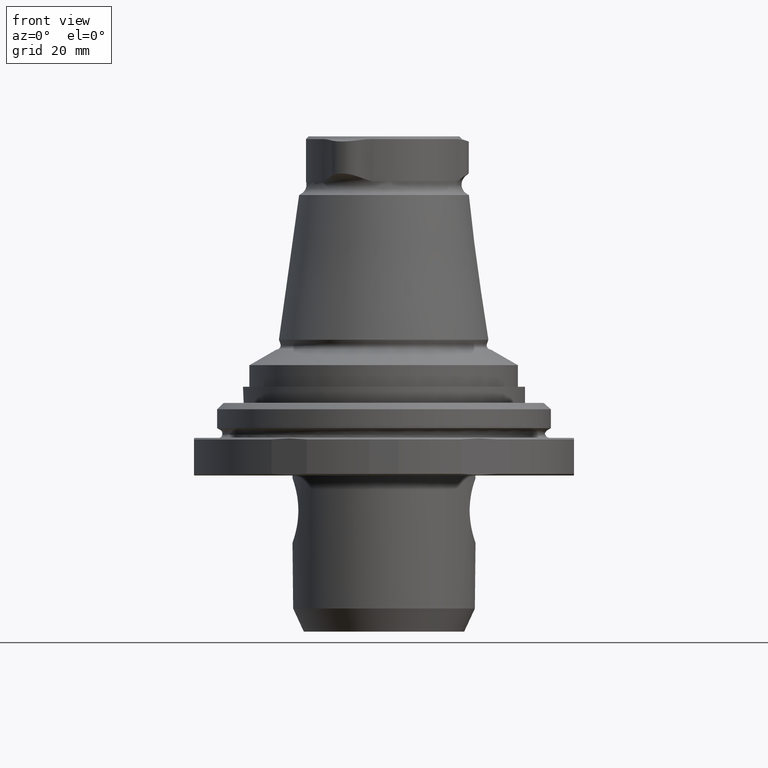
[diagram: clean part render]
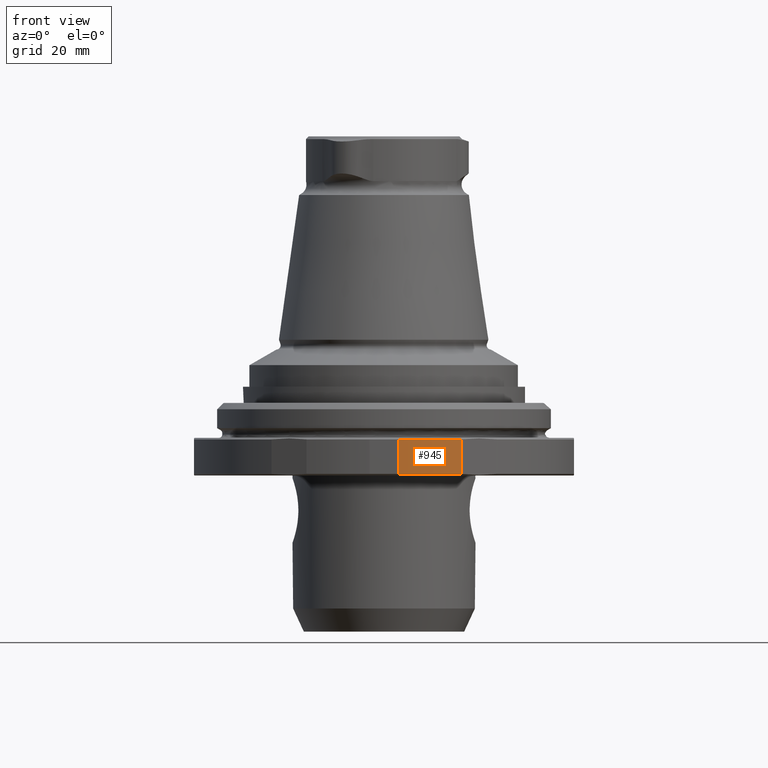
[diagram: same view with one face highlighted and labeled with its STEP entity id]
A machine part, front view. The second image highlights one B-rep face of the part: STEP entity #945.
In plain terms, the highlighted cylindrical surface (partial cylindrical patch) has radius 35.5 mm, axis along (-0, -0, -1).
Its self-contained STEP definition (entity closure, byte-faithful):
#51=LINE('',#1782,#79);
#52=LINE('',#1783,#80);
#79=VECTOR('',#1311,1000.);
#80=VECTOR('',#1312,1000.);
#145=CYLINDRICAL_SURFACE('',#1068,35.5);
#378=ORIENTED_EDGE('',*,*,#529,.F.);
#379=ORIENTED_EDGE('',*,*,#518,.F.);
#380=ORIENTED_EDGE('',*,*,#530,.T.);
#381=ORIENTED_EDGE('',*,*,#488,.T.);
#488=EDGE_CURVE('',#596,#594,#663,.T.);
#518=EDGE_CURVE('',#621,#610,#676,.T.);
#529=EDGE_CURVE('',#610,#594,#51,.F.);
#530=EDGE_CURVE('',#621,#596,#52,.F.);
#594=VERTEX_POINT('',#1654);
#596=VERTEX_POINT('',#1657);
#610=VERTEX_POINT('',#1714);
#621=VERTEX_POINT('',#1758);
#663=CIRCLE('',#1041,35.5);
#676=CIRCLE('',#1056,35.5);
#754=EDGE_LOOP('',(#378,#379,#380,#381));
#850=FACE_BOUND('',#754,.T.);
#945=ADVANCED_FACE('',(#850),#145,.T.);
#1041=AXIS2_PLACEMENT_3D('',#1656,#1243,#1244);
#1056=AXIS2_PLACEMENT_3D('',#1759,#1275,#1276);
#1068=AXIS2_PLACEMENT_3D('',#1781,#1309,#1310);
#1243=DIRECTION('',(-5.47430718319515E-16,-9.52839907700963E-18,-1.));
#1244=DIRECTION('',(-1.,8.32667268468868E-16,5.47430716006892E-16));
#1275=DIRECTION('',(-5.47430718319515E-16,-9.52839907700963E-18,-1.));
#1276=DIRECTION('',(-1.,8.32667268468868E-16,5.47430716006892E-16));
#1309=DIRECTION('',(-5.47430718319515E-16,-9.52839907700963E-18,-1.));
#1310=DIRECTION('',(-1.,8.32667268468868E-16,5.47430716006892E-16));
#1311=DIRECTION('',(-5.47430718319515E-16,-9.52839907700963E-18,-1.));
#1312=DIRECTION('',(-5.47430718319515E-16,-9.52839907700962E-18,-1.));
#1654=CARTESIAN_POINT('',(2.66270539113885,-35.4000000000001,-1.3));
#1656=CARTESIAN_POINT('',(-8.83659486284364E-14,-9.81673936924985E-14,-1.3));
#1657=CARTESIAN_POINT('',(14.3911658526399,-32.4521855258135,-1.30000000000001));
#1714=CARTESIAN_POINT('',(2.66270539113884,-35.4000000000001,-7.70000000000001));
#1758=CARTESIAN_POINT('',(14.3911658526399,-32.4521855258135,-7.70000000000001));
#1759=CARTESIAN_POINT('',(-9.18695052256813E-14,-9.82283754465914E-14,-7.70000000000001));
#1781=CARTESIAN_POINT('',(-8.82017194129406E-14,-9.81645351727754E-14,-1.));
#1782=CARTESIAN_POINT('',(2.66270539113885,-35.4000000000001,-1.));
#1783=CARTESIAN_POINT('',(14.3911658526399,-32.4521855258135,-1.00000000000001));